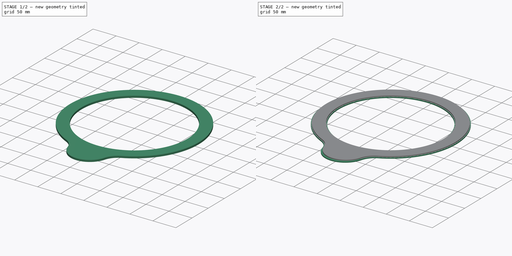
[diagram: build sequence overview — one tinted view per stage of 2, left to right]
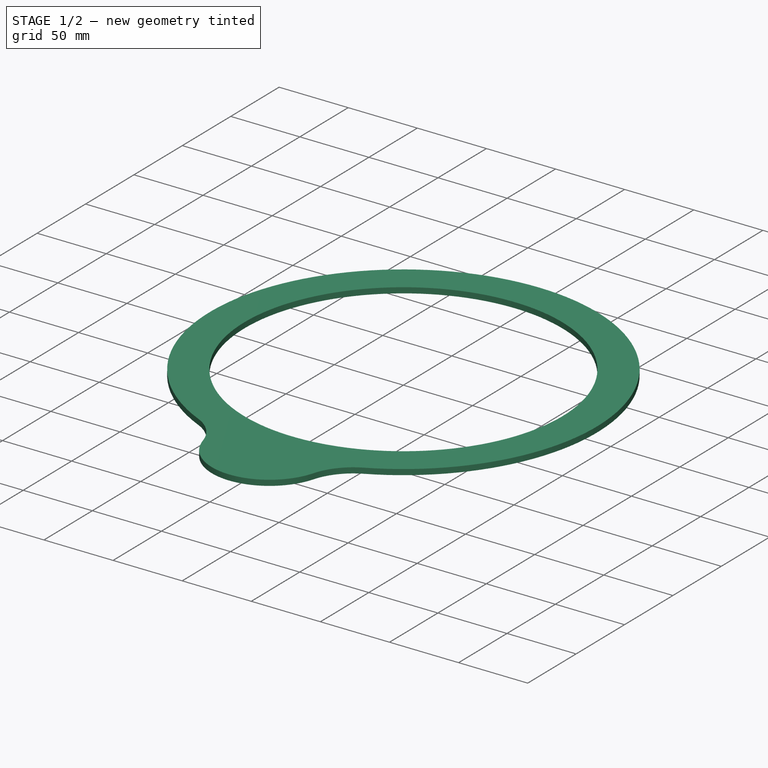
[diagram: stage 1 of 2 — iso view after this stage's code; geometry added in this stage tinted green]
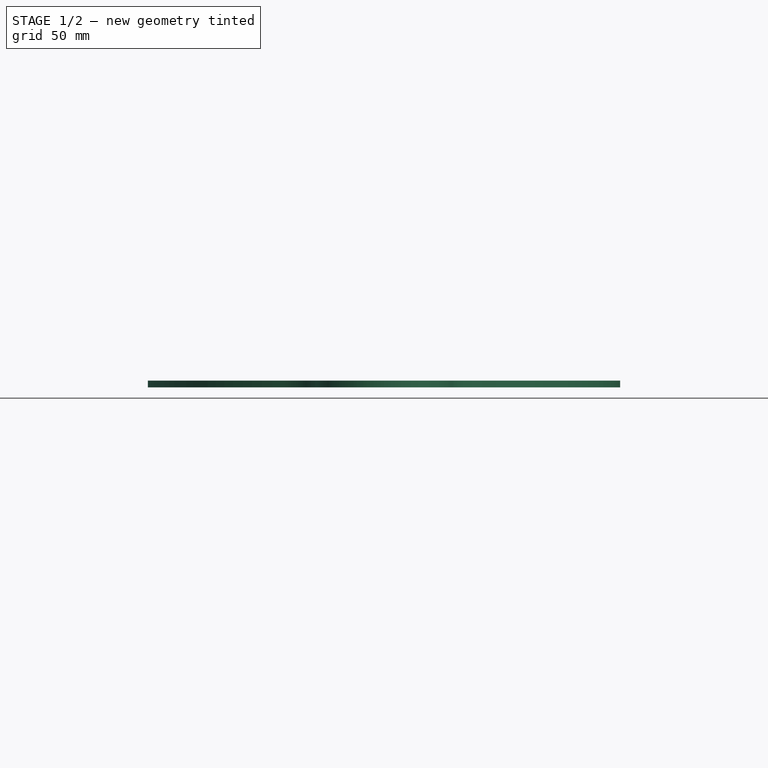
[diagram: stage 1 of 2 — front view after this stage's code; geometry added in this stage tinted green]
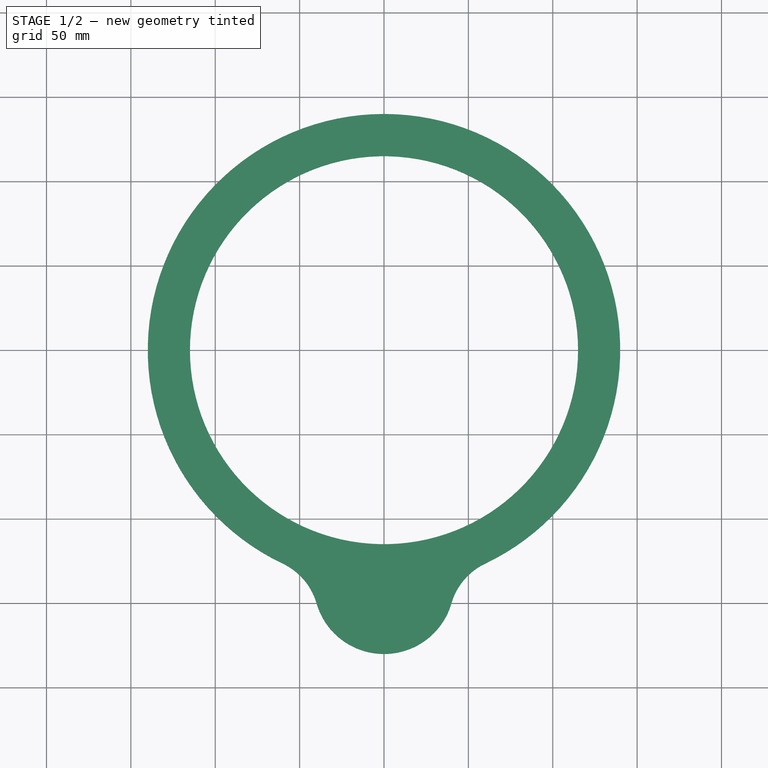
[diagram: stage 1 of 2 — top view after this stage's code; geometry added in this stage tinted green]
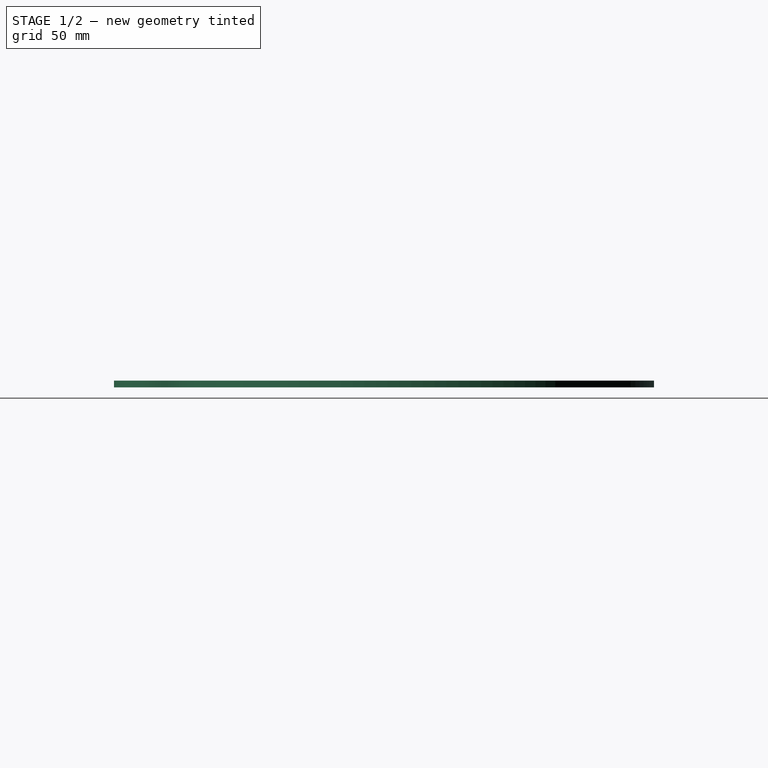
[diagram: stage 1 of 2 — right view after this stage's code; geometry added in this stage tinted green]
FCSTD DOCUMENT  (FreeCAD 0.19R24291 (Git))
Label: single_loop_28cm_top
License: All rights reserved
LicenseURL: http://en.wikipedia.org/wiki/All_rights_reserved
objects: Sketcher::SketchObject×4, PartDesign::Pad×2, PartDesign::Pocket×2, PartDesign::Body×1
note: 13 computed .brp shape members not serialized (recipe doc carries the construction recipe); baked Part::Feature solids carry a one-line shape summary decoded from their .brp

FEATURE [Sketcher::SketchObject] Sketch
  FullyConstrained = true
  MapMode = 5
  Support = -> [XY_Plane001]
  sketch-geometry (4):
    g0: ArcOfCircle CenterX=-9e-16 CenterY=0 CenterZ=0 NormalX=0 NormalY=0 NormalZ=1 AngleXU=0 Radius=140 StartAngle=5.1553 EndAngle=10.5527
    g1: ArcOfCircle CenterX=-76.1135 CenterY=-160.461 CenterZ=0 NormalX=0 NormalY=0 NormalZ=1 AngleXU=0 Radius=37.5983 StartAngle=0.281964 EndAngle=1.12789
    g2: ArcOfCircle CenterX=3.37e-14 CenterY=-138.413 CenterZ=0 NormalX=0 NormalY=0 NormalZ=1 AngleXU=0 Radius=41.6445 StartAngle=3.42356 EndAngle=6.00122
    g3: ArcOfCircle CenterX=76.1135 CenterY=-160.461 CenterZ=0 NormalX=0 NormalY=0 NormalZ=1 AngleXU=0 Radius=37.5983 StartAngle=2.01371 EndAngle=2.85963
  constraints (11):
    c: Tangent(g1,g2) = 1.5708
    c: Tangent(g1,g0) = 1.5708
    c: Tangent(g0,g3) = 1.5708
    c: Tangent(g3,g2) = 1.5708
    c: Symmetric(g1,g3,g-2)
    c: Symmetric(g0,g0,g-2)
    c: Coincident(g-1,g0)
    c: DistanceX(g0,g2) = 40
    c: Radius(g0) = 140
    c: DistanceX(g0,g0) = 60
    c: DistanceY(g2,g0) = 150
FEATURE [PartDesign::Pad] Pad
  Direction = (1,1,1)
  Length = 4
  Length2 = 100
  Profile = -> Sketch
  Refine = true
  Type = 0
FEATURE [Sketcher::SketchObject] Sketch001
  FullyConstrained = true
  MapMode = 5
  Support = -> [XY_Plane001]
  sketch-geometry (1):
    g0: Circle CenterX=0 CenterY=0 CenterZ=0 NormalX=0 NormalY=0 NormalZ=1 AngleXU=0 Radius=115
  constraints (2):
    c: Coincident(g0,g-1)
    c: Radius(g0) = 115
FEATURE [PartDesign::Pocket] Pocket
  BaseFeature = -> Pad
  Length = 10
  Length2 = 100
  Profile = -> Sketch001
  Refine = true
  Reversed = true
  Type = 0
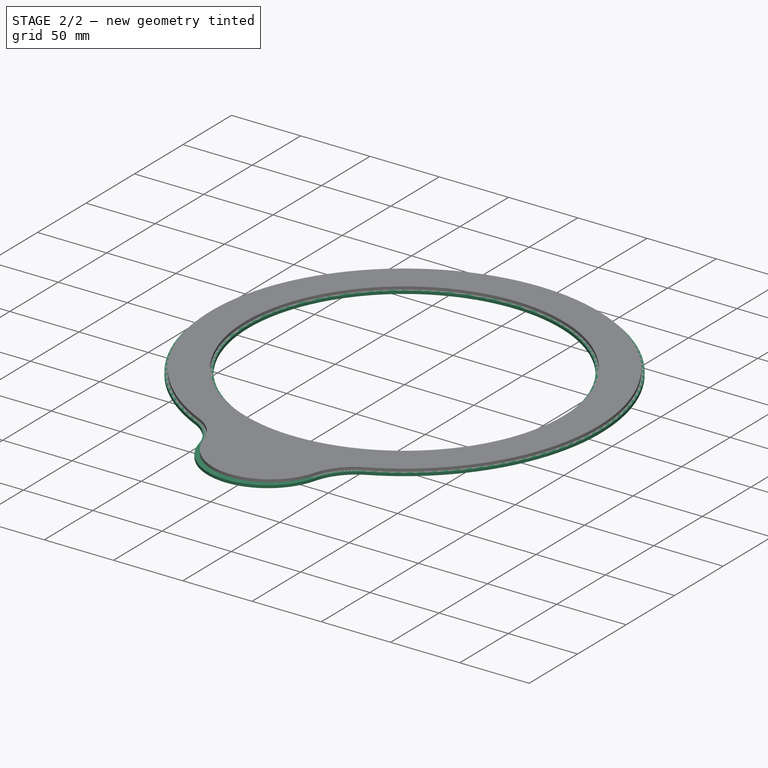
[diagram: stage 2 of 2 — iso view after this stage's code; geometry added in this stage tinted green]
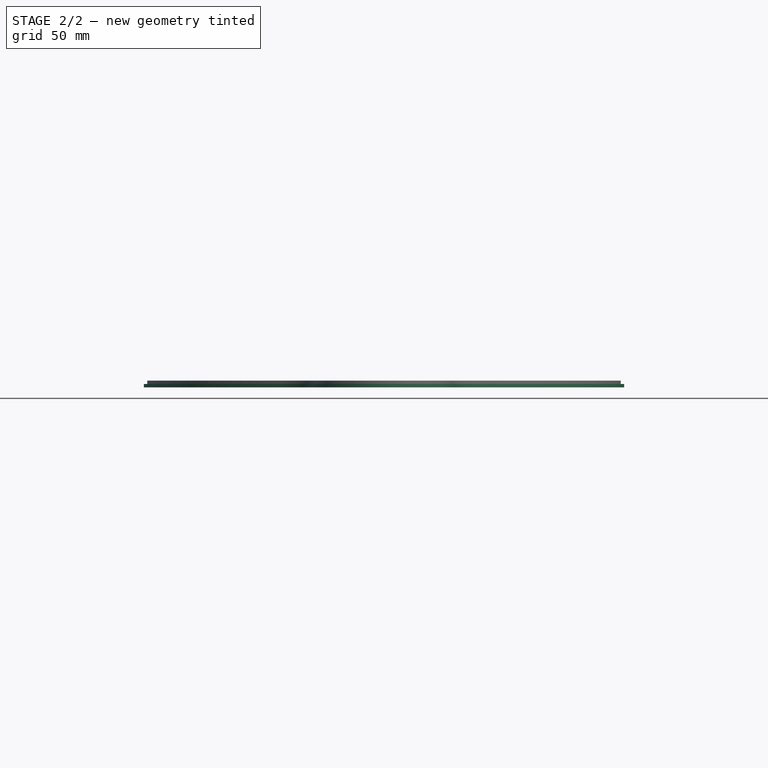
[diagram: stage 2 of 2 — front view after this stage's code; geometry added in this stage tinted green]
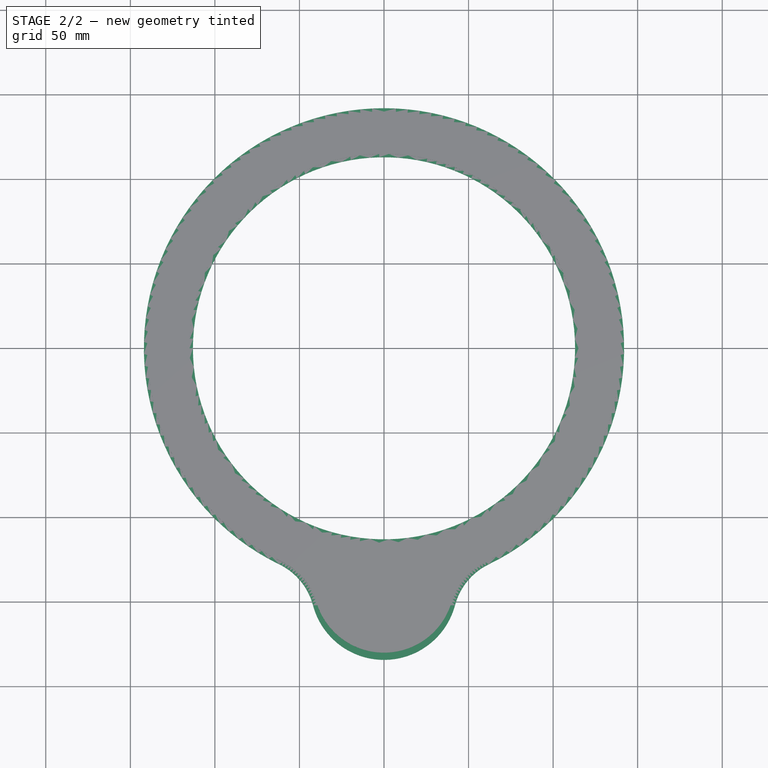
[diagram: stage 2 of 2 — top view after this stage's code; geometry added in this stage tinted green]
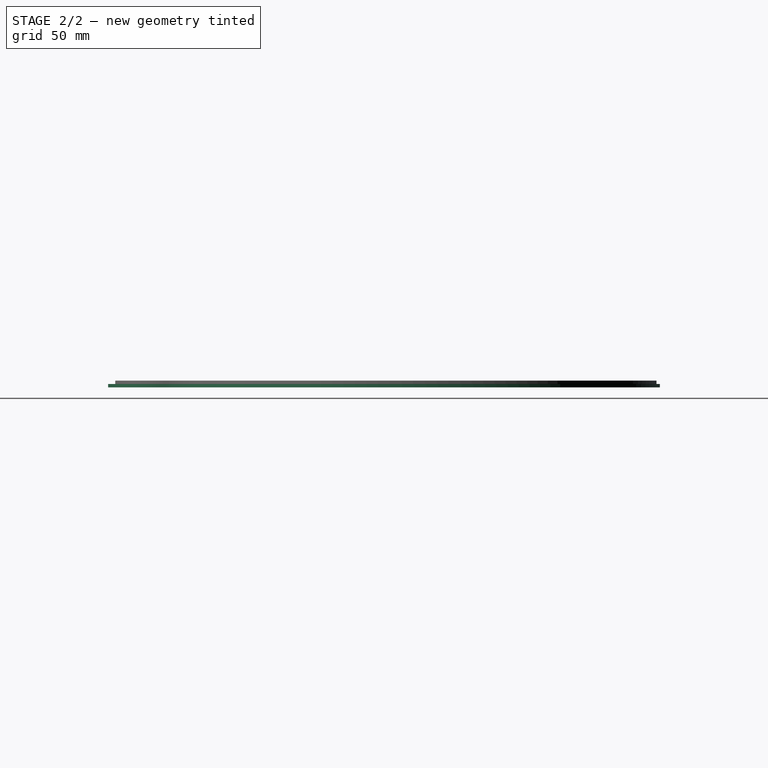
[diagram: stage 2 of 2 — right view after this stage's code; geometry added in this stage tinted green]
FEATURE [Sketcher::SketchObject] Sketch002
  FullyConstrained = true
  MapMode = 5
  sketch-geometry (4):
    g0: ArcOfCircle CenterX=-1.31e-14 CenterY=0 CenterZ=0 NormalX=0 NormalY=0 NormalZ=1 AngleXU=0 Radius=142 StartAngle=5.16423 EndAngle=10.5437
    g1: ArcOfCircle CenterX=-78.486 CenterY=-161.719 CenterZ=0 NormalX=0 NormalY=0 NormalZ=1 AngleXU=0 Radius=37.7582 StartAngle=0.260325 EndAngle=1.11896
    g2: ArcOfCircle CenterX=1.82e-14 CenterY=-140.812 CenterZ=0 NormalX=0 NormalY=0 NormalZ=1 AngleXU=0 Radius=43.4645 StartAngle=3.40192 EndAngle=6.02286
    g3: ArcOfCircle CenterX=78.486 CenterY=-161.719 CenterZ=0 NormalX=0 NormalY=0 NormalZ=1 AngleXU=0 Radius=37.7582 StartAngle=2.02263 EndAngle=2.88127
  constraints (11):
    c: Tangent(g1,g2) = 1.5708
    c: Tangent(g1,g0) = 1.5708
    c: Tangent(g0,g3) = 1.5708
    c: Tangent(g3,g2) = 1.5708
    c: Symmetric(g1,g3,g-2)
    c: Symmetric(g0,g0,g-2)
    c: Coincident(g-1,g0)
    c: DistanceX(g0,g2) = 42
    c: Radius(g0) = 142
    c: DistanceX(g0,g0) = 62
    c: DistanceY(g2,g0) = 152
FEATURE [PartDesign::Pad] Pad001
  BaseFeature = -> Pocket
  Direction = (1,1,1)
  Length = 2
  Length2 = 100
  Profile = -> Sketch002
  Refine = true
  Type = 0
FEATURE [Sketcher::SketchObject] Sketch003
  FullyConstrained = true
  MapMode = 5
  Support = -> [XY_Plane001]
  sketch-geometry (1):
    g0: Circle CenterX=0 CenterY=0 CenterZ=0 NormalX=0 NormalY=0 NormalZ=1 AngleXU=0 Radius=113
  constraints (2):
    c: Coincident(g0,g-1)
    c: Radius(g0) = 113
FEATURE [PartDesign::Pocket] Pocket001
  BaseFeature = -> Pad001
  Length = 5
  Length2 = 100
  Profile = -> Sketch003
  Refine = true
  Reversed = true
  Type = 0
FEATURE [PartDesign::Body] Body
  Group = -> [Sketch,Pad,Sketch001,Pocket,Sketch002,Pad001,Sketch003,Pocket001]
  Origin = -> Origin001
  Tip = -> Pocket001
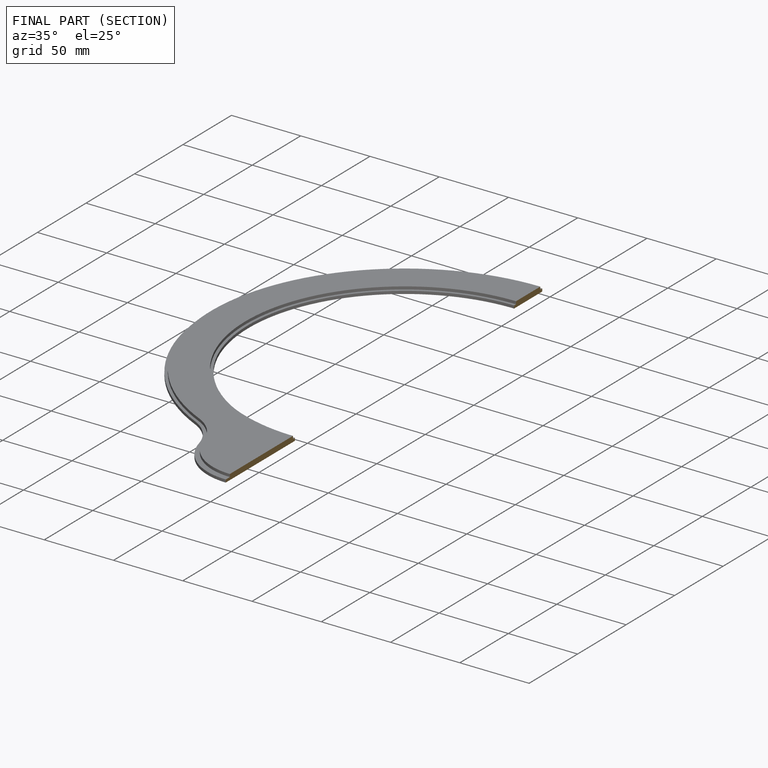
[diagram: finished part — half-section view (interior)]
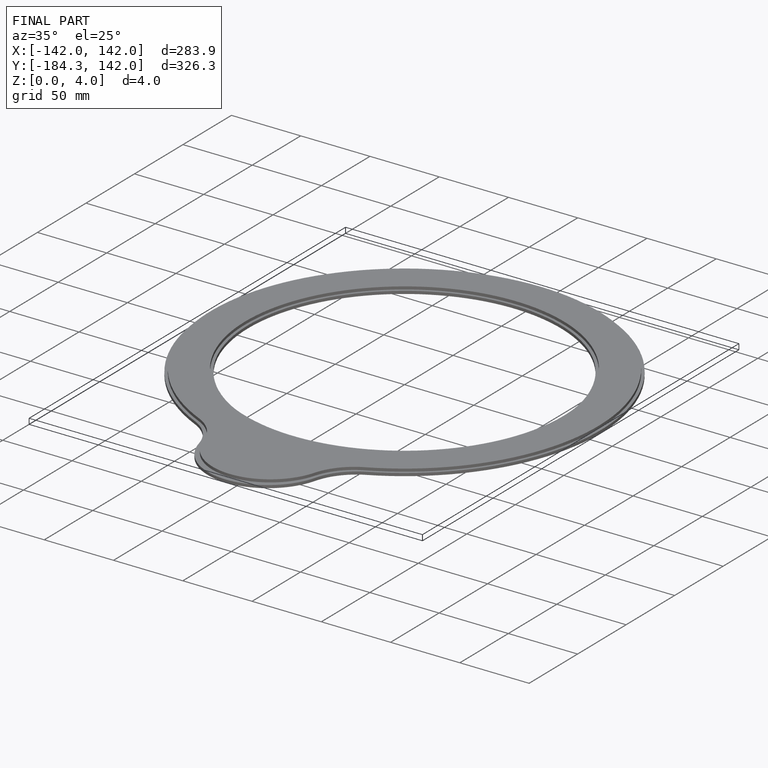
[diagram: finished part — iso view with bounding-box wireframe]
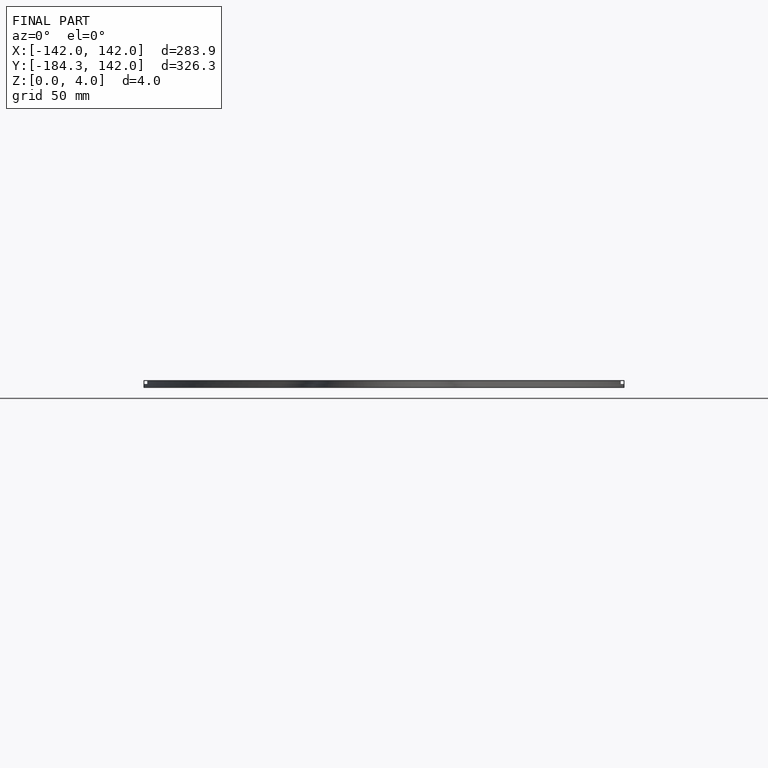
[diagram: finished part — front view with bounding-box wireframe]
